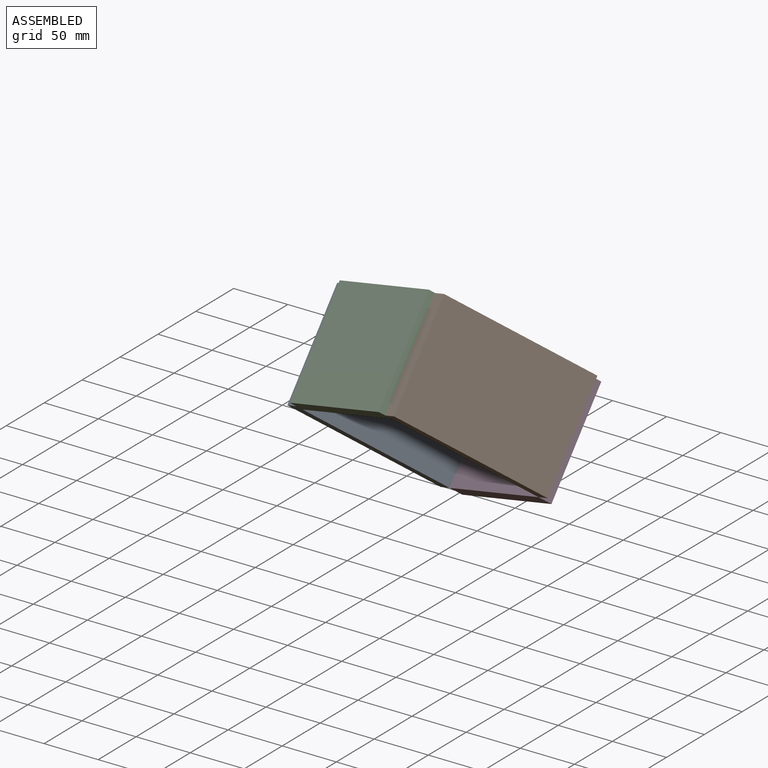
[diagram: assembled view]
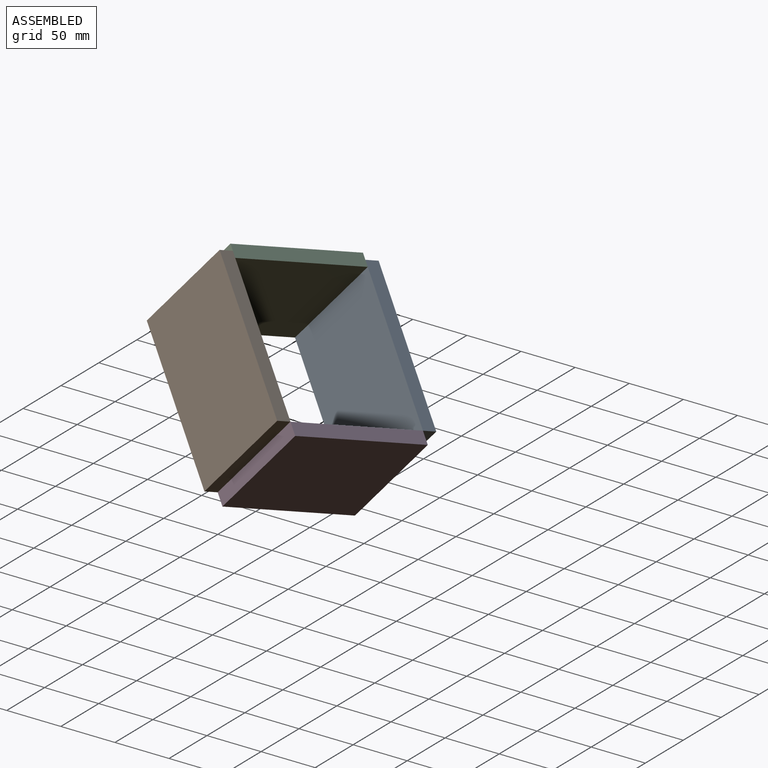
[diagram: assembled view, second angle]
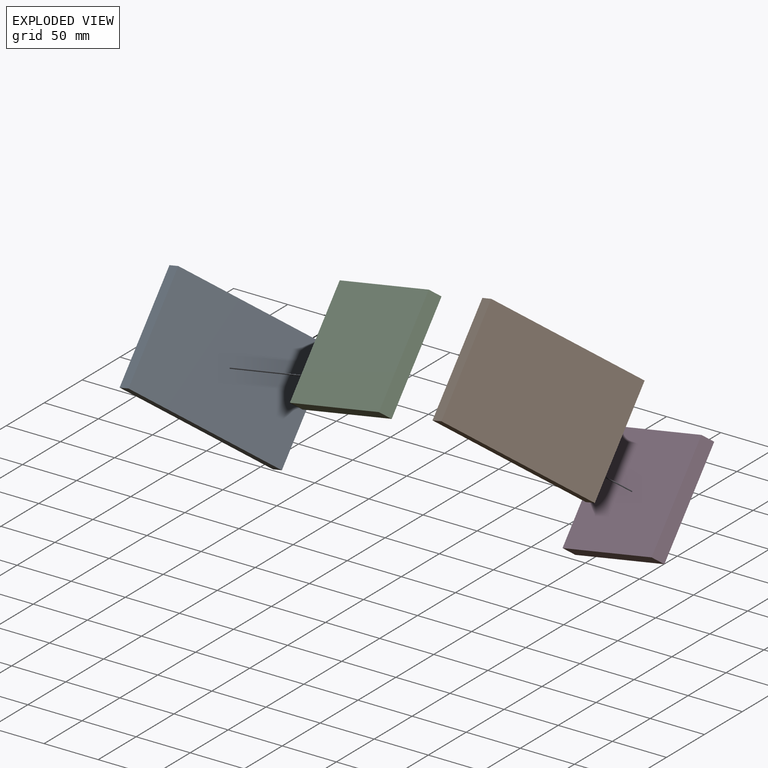
[diagram: exploded view]
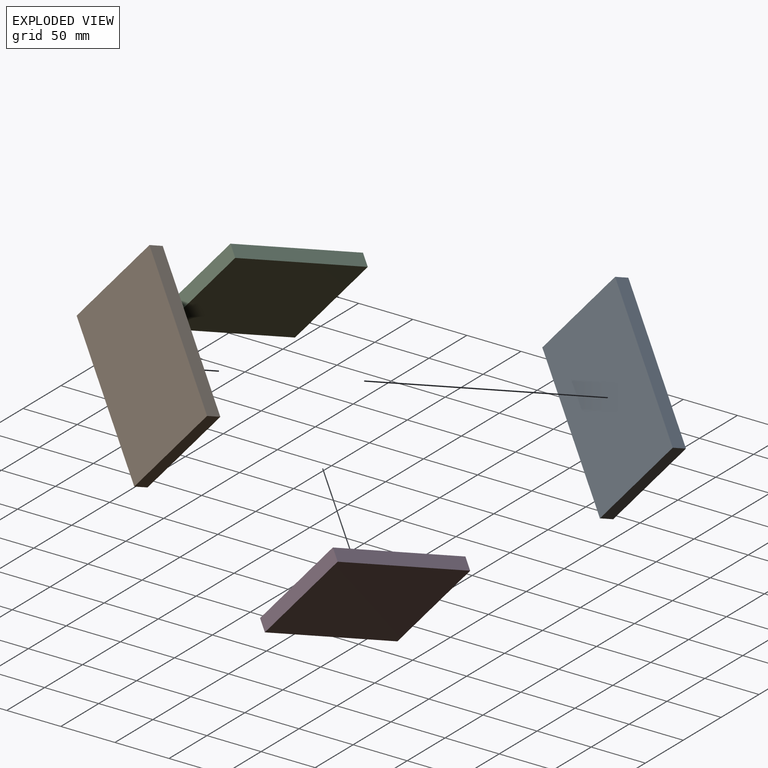
[diagram: exploded view, second angle]
ASSEMBLY  parts=4 mates=3
PART A: 6 faces, bbox 101.6x12.7x152.4 mm
  f0: plane 101.6x12.7mm, normal (0,0,1), area 1290.3mm2, adj f1,f3,f4,f5
  f1: plane 152.4x12.7mm, normal (-1,0,0), area 1935.5mm2, adj f0,f2,f4,f5
  f2: plane 101.6x12.7mm, normal (0,0,-1), area 1290.3mm2, adj f1,f3,f4,f5
  f3: plane 152.4x12.7mm, normal (1,0,0), area 1935.5mm2, adj f0,f2,f4,f5
  f4: plane 152.4x101.6mm, normal (0,-1,0), area 15483.8mm2, adj f0,f1,f2,f3
  f5: plane 152.4x101.6mm, normal (0,1,0), area 15483.8mm2, adj f0,f1,f2,f3
PART B: same geometry as A
PART C: 6 faces, bbox 101.6x127x12.7 mm
  f0: plane 101.6x12.7mm, normal (0,1,0), area 1290.3mm2, adj f1,f3,f4,f5
  f1: plane 127x12.7mm, normal (-1,0,0), area 1612.9mm2, adj f0,f2,f4,f5
  f2: plane 101.6x12.7mm, normal (0,-1,0), area 1290.3mm2, adj f1,f3,f4,f5
  f3: plane 127x12.7mm, normal (1,0,0), area 1612.9mm2, adj f0,f2,f4,f5
  f4: plane 127x101.6mm, normal (0,0,1), area 12903.2mm2, adj f0,f1,f2,f3
  f5: plane 127x101.6mm, normal (0,0,-1), area 12903.2mm2, adj f0,f1,f2,f3
PART D: same geometry as C
PLACE A rot(axis=(-0.7,-0.56,-0.44),164.9deg) t=(-192.43,134.64,74.36)mm
PLACE B rot(axis=(0.18,-0.61,0.77),92.4deg) t=(-79.67,91.14,113.34)mm
PLACE C rot(axis=(-0.7,-0.56,-0.44),164.9deg) t=(-174.02,57.48,141.83)mm
PLACE D rot(axis=(-0.62,0.77,0.15),128deg) t=(-101.01,164.04,49.56)mm
MATE fastened D.f5 <-> B.f2  axis (-0.46,-0.67,0.58) through (-44.62,142.29,69.04)mm
MATE fastened B.f5 <-> C.f0  axis (-0.89,0.34,-0.31) through (-114.71,39.99,157.63)mm
MATE fastened A.f5 <-> C.f2  axis (0.89,-0.34,0.31) through (-227.48,83.49,118.65)mm
